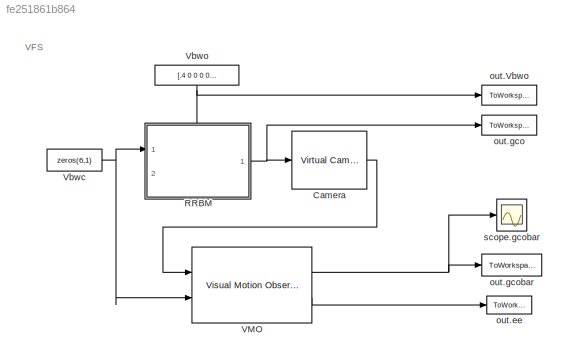
MODEL slx_fe251861b864
KIND model
CONFIG AbsTol = auto
CONFIG EnableMultiTasking = off
CONFIG FixedStep = 0.001
CONFIG MaxStep = auto
CONFIG MinStep = auto
CONFIG RelTol = 1e-3
CONFIG SampleTimeConstraint = Unconstrained
CONFIG SolverName = VariableStepAuto
CONFIG StartTime = 0.0
CONFIG StopTime = 20
WORKSPACE source: mxarray member
WORKSPACE lambda = 0.0016
WORKSPACE po = [0 0.5 0 -0.5 0 0 0 0 0.5 0 -0.5 0]
BLOCK [Reference] Camera  REF=simlib_vpc_basic/Virtual Camera
  Ports = [1, 1]
  SourceBlock = simlib_vpc_basic/Virtual Camera
  SourceProductName = VPC Library
  SourceType = Virtual Camera model [V1]
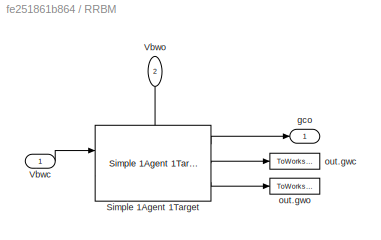
BLOCK [SubSystem] RRBM
  PortSchema = {"entries":[{"content":{"sides":[{"content":{"connectorIds":["In1"]},"type":"ConnectorPlacement.EquallySpacedRectSide","uuid":"ce1006a6-ff18-4db7-ad69-3a60144a672f"},{"content":{"connectorIds":["Out1"],"side":"RIGHT"},"type":"ConnectorPlacement.EquallySpacedRectSide","uuid":"9f6b7cf2-eb23-4db0-862a-f9244538bf77"},{"content":{"connectorIds":["In2"],"side":"TOP"},"type":"ConnectorPlacement.EquallySp...<+389ch>
  Ports = [2, 1]
  RequestExecContextInheritance = off
BLOCK [Reference] RRBM/Simple 1Agent 1Target  REF=simlib_vpc_basic/Simple 1Agent 1Target
  Ports = [2, 3]
  SourceBlock = simlib_vpc_basic/Simple 1Agent 1Target
  SourceProductName = VPC Library
  SourceType = Simple 1Agent 1 Target block [V1]
BLOCK [Inport] RRBM/Vbwc
BLOCK [Inport] RRBM/Vbwo
  NameLocation = left
  Port = 2
BLOCK [Outport] RRBM/gco
  NameLocation = top
BLOCK [ToWorkspace] RRBM/out.gwc
  FixptAsFi = on
  MaxDataPoints = inf
  NameLocation = right
  Ports = [1]
  SampleTime = -1
  SaveFormat = Structure With Time
  VariableName = gwc
BLOCK [ToWorkspace] RRBM/out.gwo
  FixptAsFi = on
  MaxDataPoints = inf
  NameLocation = right
  Ports = [1]
  SampleTime = -1
  SaveFormat = Structure With Time
  VariableName = gwo
BLOCK [Reference] VMO  REF=simlib_vpc_basic/Visual Motion Observer
  Ports = [2, 2]
  SourceBlock = simlib_vpc_basic/Visual Motion Observer
  SourceProductName = VPC Library
  SourceType = Visual Motion Observer [V1]
BLOCK [Constant] Vbwc
  Value = zeros(6,1)
BLOCK [Constant] Vbwo
  NameLocation = right
  Value = [.4 0 0 0 0 -pi/6]
BLOCK [ToWorkspace] out.Vbwo
  FixptAsFi = on
  MaxDataPoints = inf
  NameLocation = right
  Ports = [1]
  SampleTime = -1
  SaveFormat = Structure With Time
  VariableName = Vbwo
BLOCK [ToWorkspace] out.ee
  FixptAsFi = on
  MaxDataPoints = inf
  Ports = [1]
  SampleTime = -1
  SaveFormat = Structure With Time
  VariableName = ee
BLOCK [ToWorkspace] out.gco
  FixptAsFi = on
  MaxDataPoints = inf
  NameLocation = right
  Ports = [1]
  SampleTime = -1
  SaveFormat = Structure With Time
  VariableName = gco
BLOCK [ToWorkspace] out.gcobar
  FixptAsFi = on
  MaxDataPoints = inf
  Ports = [1]
  SampleTime = -1
  SaveFormat = Structure With Time
  VariableName = gcobar
BLOCK [Scope] scope.gcobar
  Floating = off
  NumInputPorts = 1
  Ports = [1]
  ScopeSpecificationString = Simulink.scopes.TimeScopeBlockCfg('CurrentConfiguration', extmgr.ConfigurationSet(extmgr.Configuration('Core','General UI',true),extmgr.Configuration('Core','Source UI',true),extmgr.Configuration('Sources','WiredSimulink',true),extmgr.Configuration('Visuals','Time Domain',true,'SerializedDisplays',{struct('MinYLimReal','-44571.05179','MaxYLimReal','401135.54571','YLabelReal','','MinYLimMag','   0....<+1871ch>
ANNOTATION (root): VFS
LINE Camera:1 -> VMO:1
LINE RRBM/Simple 1Agent 1Target:1 -> RRBM/gco:1
LINE RRBM/Simple 1Agent 1Target:2 -> RRBM/out.gwc:1
LINE RRBM/Simple 1Agent 1Target:3 -> RRBM/out.gwo:1
LINE RRBM/Vbwc:1 -> RRBM/Simple 1Agent 1Target:1
LINE RRBM/Vbwo:1 -> RRBM/Simple 1Agent 1Target:2
NET RRBM:1 -> Camera:1, out.gco:1
NET VMO:1 -> out.gcobar:1, scope.gcobar:1
LINE VMO:2 -> out.ee:1
NET Vbwc:1 -> RRBM:1, VMO:2
NET Vbwo:1 -> RRBM:2, out.Vbwo:1
note: NET lines group one-source signal fan-out (src -> all destinations, sorted); 1:1 wires keep LINE
